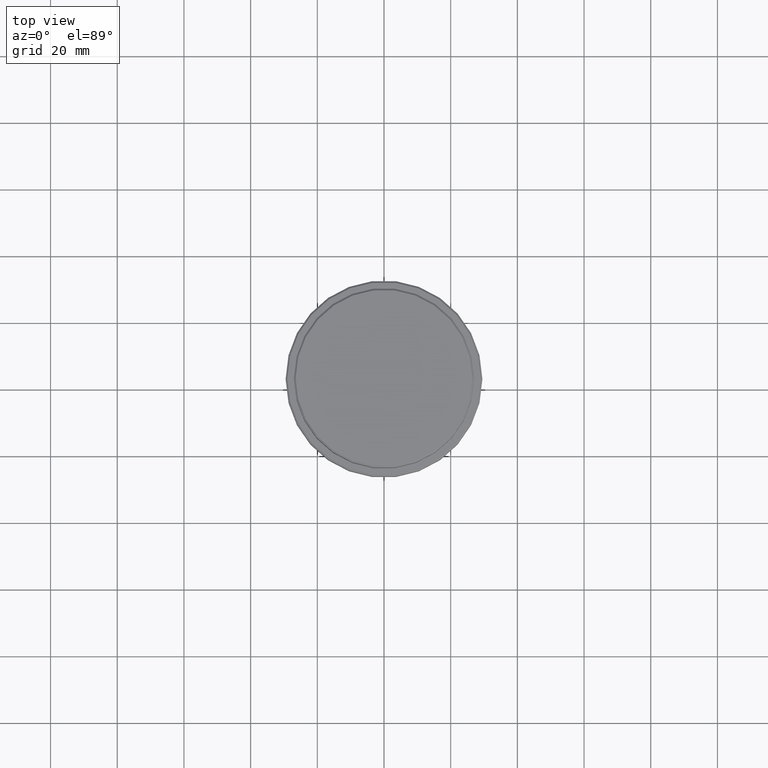
[diagram: clean part render]
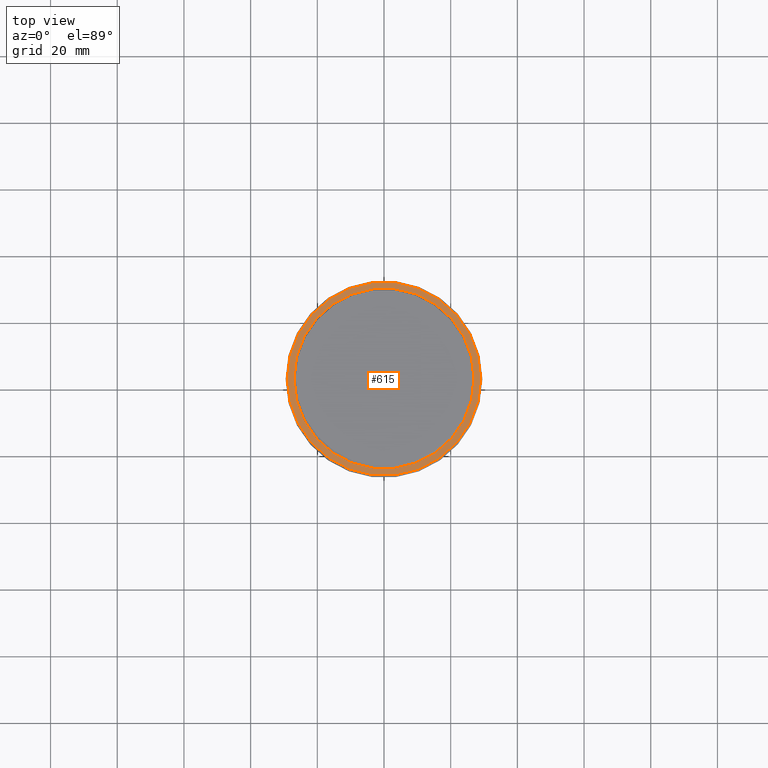
[diagram: same view with one face highlighted and labeled with its STEP entity id]
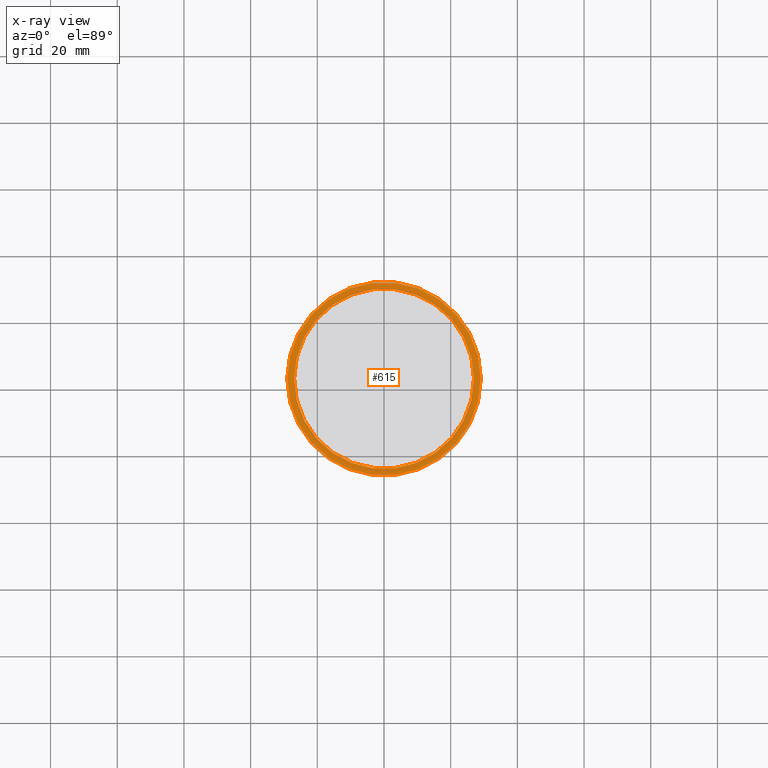
[diagram: x-ray of the same camera — body ghosted, the highlighted face saturated]
A machine part, top view. The second image highlights one B-rep face of the part: STEP entity #615.
The next image is the same camera in x-ray: the body ghosted, the highlighted face saturated — about 0% of this face is hidden behind the body in this view.
In plain terms, the highlighted planar face has unit normal (0, -0, 1).
Its self-contained STEP definition (entity closure, byte-faithful):
#25 = DIRECTION ( 'NONE',  ( 0.000000000000000000, 0.000000000000000000, -1.000000000000000000 ) ) ;
#32 = DIRECTION ( 'NONE',  ( -0.000000000000000000, -0.000000000000000000, 1.000000000000000000 ) ) ;
#39 = PLANE ( 'NONE',  #1385 ) ;
#146 = CARTESIAN_POINT ( 'NONE',  ( 0.000000000000000000, 0.000000000000000000, -12.00000000000000355 ) ) ;
#159 = EDGE_LOOP ( 'NONE', ( #558, #1209 ) ) ;
#182 = CIRCLE ( 'NONE', #1341, 28.99999999999999645 ) ;
#195 = EDGE_CURVE ( 'NONE', #1413, #829, #182, .T. ) ;
#205 = AXIS2_PLACEMENT_3D ( 'NONE', #749, #756, #649 ) ;
#220 = DIRECTION ( 'NONE',  ( 1.000000000000000000, 0.000000000000000000, 0.000000000000000000 ) ) ;
#254 = DIRECTION ( 'NONE',  ( 1.000000000000000000, 0.000000000000000000, 0.000000000000000000 ) ) ;
#284 = EDGE_LOOP ( 'NONE', ( #1065, #1184 ) ) ;
#325 = CARTESIAN_POINT ( 'NONE',  ( -26.99999999999999645, 3.306546357697853339E-15, -12.00000000000000355 ) ) ;
#403 = CIRCLE ( 'NONE', #473, 28.99999999999999645 ) ;
#441 = DIRECTION ( 'NONE',  ( -0.000000000000000000, -0.000000000000000000, 1.000000000000000000 ) ) ;
#445 = EDGE_CURVE ( 'NONE', #563, #1160, #913, .T. ) ;
#473 = AXIS2_PLACEMENT_3D ( 'NONE', #559, #441, #220 ) ;
#474 = DIRECTION ( 'NONE',  ( 1.000000000000000000, 0.000000000000000000, 0.000000000000000000 ) ) ;
#558 = ORIENTED_EDGE ( 'NONE', *, *, #624, .T. ) ;
#559 = CARTESIAN_POINT ( 'NONE',  ( 0.000000000000000000, 0.000000000000000000, -12.00000000000000355 ) ) ;
#563 = VERTEX_POINT ( 'NONE', #325 ) ;
#565 = FACE_BOUND ( 'NONE', #159, .T. ) ;
#575 = CARTESIAN_POINT ( 'NONE',  ( 0.000000000000000000, 26.49999999999999645, -12.00000000000000355 ) ) ;
#615 = ADVANCED_FACE ( 'NONE', ( #918, #565 ), #39, .T. ) ;
#624 = EDGE_CURVE ( 'NONE', #1160, #563, #1254, .T. ) ;
#627 = CARTESIAN_POINT ( 'NONE',  ( 26.99999999999999645, 0.000000000000000000, -12.00000000000000355 ) ) ;
#649 = DIRECTION ( 'NONE',  ( 1.000000000000000000, 0.000000000000000000, 0.000000000000000000 ) ) ;
#666 = DIRECTION ( 'NONE',  ( 1.000000000000000000, 0.000000000000000000, 0.000000000000000000 ) ) ;
#749 = CARTESIAN_POINT ( 'NONE',  ( 0.000000000000000000, 0.000000000000000000, -12.00000000000000355 ) ) ;
#756 = DIRECTION ( 'NONE',  ( 0.000000000000000000, 0.000000000000000000, -1.000000000000000000 ) ) ;
#812 = CARTESIAN_POINT ( 'NONE',  ( 28.99999999999999645, 3.582091887506007817E-15, -12.00000000000000355 ) ) ;
#829 = VERTEX_POINT ( 'NONE', #1028 ) ;
#908 = CARTESIAN_POINT ( 'NONE',  ( 0.000000000000000000, 0.000000000000000000, -12.00000000000000355 ) ) ;
#913 = CIRCLE ( 'NONE', #205, 26.99999999999999645 ) ;
#918 = FACE_OUTER_BOUND ( 'NONE', #284, .T. ) ;
#1028 = CARTESIAN_POINT ( 'NONE',  ( -28.99999999999999645, 0.000000000000000000, -12.00000000000000355 ) ) ;
#1065 = ORIENTED_EDGE ( 'NONE', *, *, #1248, .T. ) ;
#1115 = AXIS2_PLACEMENT_3D ( 'NONE', #908, #25, #666 ) ;
#1123 = DIRECTION ( 'NONE',  ( 0.000000000000000000, -0.000000000000000000, 1.000000000000000000 ) ) ;
#1160 = VERTEX_POINT ( 'NONE', #627 ) ;
#1184 = ORIENTED_EDGE ( 'NONE', *, *, #195, .T. ) ;
#1209 = ORIENTED_EDGE ( 'NONE', *, *, #445, .T. ) ;
#1248 = EDGE_CURVE ( 'NONE', #829, #1413, #403, .T. ) ;
#1254 = CIRCLE ( 'NONE', #1115, 26.99999999999999645 ) ;
#1341 = AXIS2_PLACEMENT_3D ( 'NONE', #146, #32, #474 ) ;
#1385 = AXIS2_PLACEMENT_3D ( 'NONE', #575, #1123, #254 ) ;
#1413 = VERTEX_POINT ( 'NONE', #812 ) ;